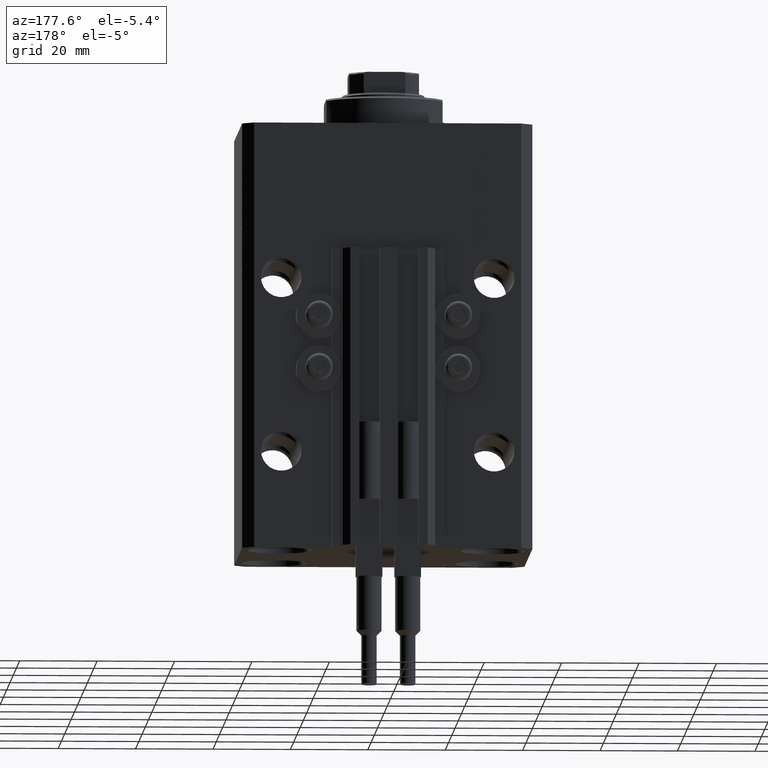
[diagram: clean part render]
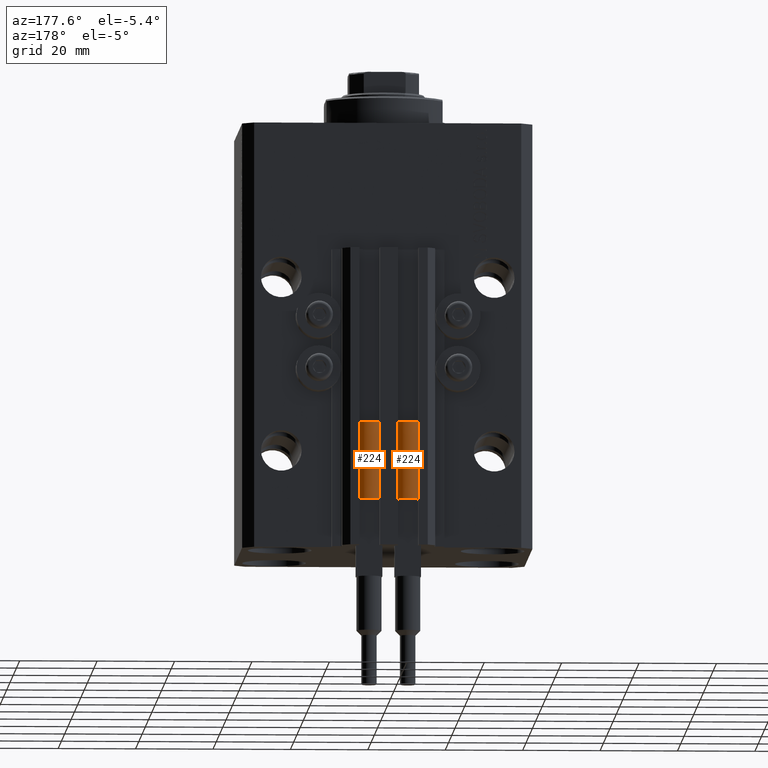
[diagram: same view with one multi-face feature highlighted, each face labeled with its STEP entity id]
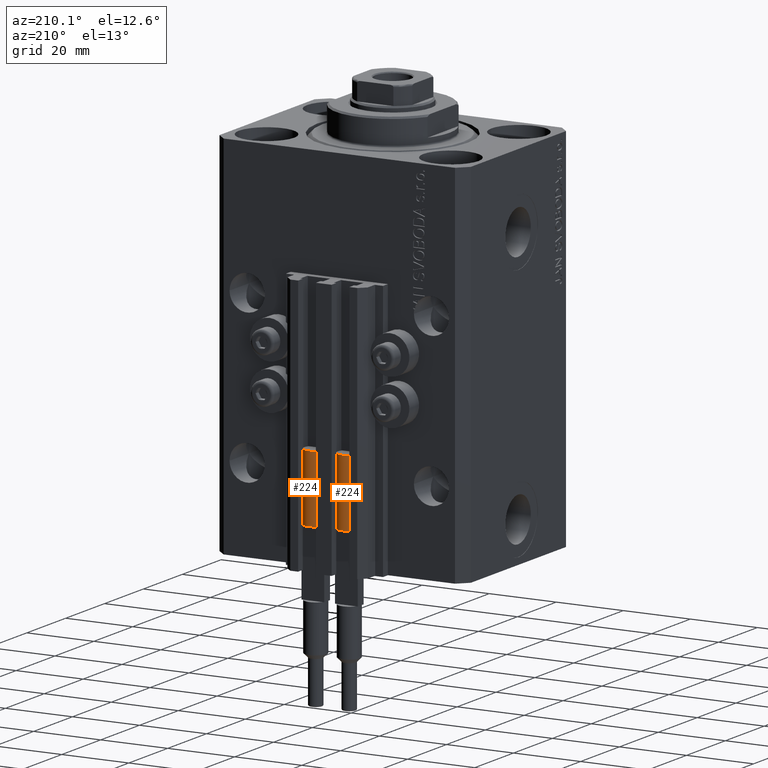
[diagram: same view with one multi-face feature highlighted, each face labeled with its STEP entity id]
A machine part, auxiliary view. The highlighted faces form ONE feature: a constant-radius fillet chain: 2 tangent blend faces with common blend radius 3.4 mm. The faces share edges in the B-rep.
A second angle (auxiliary view) of the same feature is appended — it is thin or edge-on in the first view.
Their STEP definitions:
[1] entity #224 (Cylinder):
#91 = ORIENTED_EDGE ( 'NONE', *, *, #35414, .T. ) ;
#224 = ADVANCED_FACE ( 'NONE', ( #7467 ), #22318, .T. ) ;
#1287 = CARTESIAN_POINT ( 'NONE',  ( 0.000000000000000000, 0.000000000000000000, 20.00000000000000000 ) ) ;
#2451 = ORIENTED_EDGE ( 'NONE', *, *, #24583, .F. ) ;
#3814 = DIRECTION ( 'NONE',  ( -0.000000000000000000, -0.000000000000000000, -1.000000000000000000 ) ) ;
#4032 = VECTOR ( 'NONE', #28088, 1000.000000000000000 ) ;
#4962 = DIRECTION ( 'NONE',  ( 1.000000000000000000, 0.000000000000000000, 0.000000000000000000 ) ) ;
#5636 = VERTEX_POINT ( 'NONE', #31916 ) ;
#6037 = CIRCLE ( 'NONE', #10044, 3.400000000000000355 ) ;
#7467 = FACE_OUTER_BOUND ( 'NONE', #46467, .T. ) ;
#8025 = CARTESIAN_POINT ( 'NONE',  ( -3.399999999999999467, -4.915049848600952119E-16, 20.00000000000000000 ) ) ;
#8550 = DIRECTION ( 'NONE',  ( 1.000000000000000000, 0.000000000000000000, 0.000000000000000000 ) ) ;
#9146 = EDGE_CURVE ( 'NONE', #39983, #23685, #6037, .T. ) ;
#10044 = AXIS2_PLACEMENT_3D ( 'NONE', #38377, #41558, #44984 ) ;
#12270 = DIRECTION ( 'NONE',  ( 0.000000000000000000, 0.000000000000000000, 1.000000000000000000 ) ) ;
#13056 = CARTESIAN_POINT ( 'NONE',  ( 3.400000000000000355, 4.163799117101001052E-16, 0.000000000000000000 ) ) ;
#14666 = ORIENTED_EDGE ( 'NONE', *, *, #9146, .T. ) ;
#15343 = VECTOR ( 'NONE', #25801, 1000.000000000000000 ) ;
#16235 = DIRECTION ( 'NONE',  ( 0.000000000000000000, 0.000000000000000000, 1.000000000000000000 ) ) ;
#16843 = EDGE_CURVE ( 'NONE', #5636, #29726, #43296, .T. ) ;
#16976 = ORIENTED_EDGE ( 'NONE', *, *, #16843, .F. ) ;
#17660 = EDGE_CURVE ( 'NONE', #47677, #23685, #32390, .T. ) ;
#18675 = DIRECTION ( 'NONE',  ( -1.000000000000000000, 0.000000000000000000, 0.000000000000000000 ) ) ;
#20089 = AXIS2_PLACEMENT_3D ( 'NONE', #30930, #41902, #8550 ) ;
#21447 = ORIENTED_EDGE ( 'NONE', *, *, #39815, .F. ) ;
#22318 = CYLINDRICAL_SURFACE ( 'NONE', #40811, 3.400000000000000355 ) ;
#23530 = CARTESIAN_POINT ( 'NONE',  ( 0.000000000000000000, 0.000000000000000000, 20.00000000000000000 ) ) ;
#23685 = VERTEX_POINT ( 'NONE', #27025 ) ;
#24583 = EDGE_CURVE ( 'NONE', #27476, #5636, #28634, .T. ) ;
#25801 = DIRECTION ( 'NONE',  ( -0.000000000000000000, -0.000000000000000000, -1.000000000000000000 ) ) ;
#27025 = CARTESIAN_POINT ( 'NONE',  ( -3.400000000000000355, 0.000000000000000000, 0.000000000000000000 ) ) ;
#27177 = DIRECTION ( 'NONE',  ( 1.000000000000000000, 0.000000000000000000, 0.000000000000000000 ) ) ;
#27476 = VERTEX_POINT ( 'NONE', #33121 ) ;
#28088 = DIRECTION ( 'NONE',  ( -0.000000000000000000, -0.000000000000000000, -1.000000000000000000 ) ) ;
#28364 = AXIS2_PLACEMENT_3D ( 'NONE', #23530, #16235, #27177 ) ;
#28565 = CARTESIAN_POINT ( 'NONE',  ( 3.400000000000000355, 4.163799117101001052E-16, 20.00000000000000000 ) ) ;
#28634 = CIRCLE ( 'NONE', #20089, 3.400000000000000355 ) ;
#29726 = VERTEX_POINT ( 'NONE', #46036 ) ;
#30930 = CARTESIAN_POINT ( 'NONE',  ( 0.000000000000000000, 0.000000000000000000, 20.00000000000000000 ) ) ;
#31916 = CARTESIAN_POINT ( 'NONE',  ( 3.051229260478471428, 1.500000000000000000, 20.00000000000000000 ) ) ;
#32390 = LINE ( 'NONE', #37006, #15343 ) ;
#33121 = CARTESIAN_POINT ( 'NONE',  ( 3.400000000000000355, 0.000000000000000000, 20.00000000000000000 ) ) ;
#35414 = EDGE_CURVE ( 'NONE', #27476, #39983, #47321, .T. ) ;
#36149 = CIRCLE ( 'NONE', #28364, 3.400000000000000355 ) ;
#37006 = CARTESIAN_POINT ( 'NONE',  ( -3.400000000000000355, 0.000000000000000000, 20.00000000000000000 ) ) ;
#37165 = CARTESIAN_POINT ( 'NONE',  ( 0.000000000000000000, 0.000000000000000000, 20.00000000000000000 ) ) ;
#37464 = ORIENTED_EDGE ( 'NONE', *, *, #17660, .F. ) ;
#38377 = CARTESIAN_POINT ( 'NONE',  ( 0.000000000000000000, 0.000000000000000000, 0.000000000000000000 ) ) ;
#38611 = AXIS2_PLACEMENT_3D ( 'NONE', #1287, #12270, #4962 ) ;
#39815 = EDGE_CURVE ( 'NONE', #29726, #47677, #36149, .T. ) ;
#39983 = VERTEX_POINT ( 'NONE', #13056 ) ;
#40811 = AXIS2_PLACEMENT_3D ( 'NONE', #37165, #3814, #18675 ) ;
#41558 = DIRECTION ( 'NONE',  ( 0.000000000000000000, 0.000000000000000000, 1.000000000000000000 ) ) ;
#41902 = DIRECTION ( 'NONE',  ( 0.000000000000000000, 0.000000000000000000, 1.000000000000000000 ) ) ;
#43296 = CIRCLE ( 'NONE', #38611, 3.400000000000000355 ) ;
#44984 = DIRECTION ( 'NONE',  ( 1.000000000000000000, 0.000000000000000000, 0.000000000000000000 ) ) ;
#46036 = CARTESIAN_POINT ( 'NONE',  ( -3.051229260478471428, 1.500000000000000000, 20.00000000000000000 ) ) ;
#46467 = EDGE_LOOP ( 'NONE', ( #2451, #91, #14666, #37464, #21447, #16976 ) ) ;
#47321 = LINE ( 'NONE', #28565, #4032 ) ;
#47677 = VERTEX_POINT ( 'NONE', #8025 ) ;
[2] entity #224 (Cylinder):
#91 = ORIENTED_EDGE ( 'NONE', *, *, #35414, .T. ) ;
#224 = ADVANCED_FACE ( 'NONE', ( #7467 ), #22318, .T. ) ;
#1287 = CARTESIAN_POINT ( 'NONE',  ( 0.000000000000000000, 0.000000000000000000, 20.00000000000000000 ) ) ;
#2451 = ORIENTED_EDGE ( 'NONE', *, *, #24583, .F. ) ;
#3814 = DIRECTION ( 'NONE',  ( -0.000000000000000000, -0.000000000000000000, -1.000000000000000000 ) ) ;
#4032 = VECTOR ( 'NONE', #28088, 1000.000000000000000 ) ;
#4962 = DIRECTION ( 'NONE',  ( 1.000000000000000000, 0.000000000000000000, 0.000000000000000000 ) ) ;
#5636 = VERTEX_POINT ( 'NONE', #31916 ) ;
#6037 = CIRCLE ( 'NONE', #10044, 3.400000000000000355 ) ;
#7467 = FACE_OUTER_BOUND ( 'NONE', #46467, .T. ) ;
#8025 = CARTESIAN_POINT ( 'NONE',  ( -3.399999999999999467, -4.915049848600952119E-16, 20.00000000000000000 ) ) ;
#8550 = DIRECTION ( 'NONE',  ( 1.000000000000000000, 0.000000000000000000, 0.000000000000000000 ) ) ;
#9146 = EDGE_CURVE ( 'NONE', #39983, #23685, #6037, .T. ) ;
#10044 = AXIS2_PLACEMENT_3D ( 'NONE', #38377, #41558, #44984 ) ;
#12270 = DIRECTION ( 'NONE',  ( 0.000000000000000000, 0.000000000000000000, 1.000000000000000000 ) ) ;
#13056 = CARTESIAN_POINT ( 'NONE',  ( 3.400000000000000355, 4.163799117101001052E-16, 0.000000000000000000 ) ) ;
#14666 = ORIENTED_EDGE ( 'NONE', *, *, #9146, .T. ) ;
#15343 = VECTOR ( 'NONE', #25801, 1000.000000000000000 ) ;
#16235 = DIRECTION ( 'NONE',  ( 0.000000000000000000, 0.000000000000000000, 1.000000000000000000 ) ) ;
#16843 = EDGE_CURVE ( 'NONE', #5636, #29726, #43296, .T. ) ;
#16976 = ORIENTED_EDGE ( 'NONE', *, *, #16843, .F. ) ;
#17660 = EDGE_CURVE ( 'NONE', #47677, #23685, #32390, .T. ) ;
#18675 = DIRECTION ( 'NONE',  ( -1.000000000000000000, 0.000000000000000000, 0.000000000000000000 ) ) ;
#20089 = AXIS2_PLACEMENT_3D ( 'NONE', #30930, #41902, #8550 ) ;
#21447 = ORIENTED_EDGE ( 'NONE', *, *, #39815, .F. ) ;
#22318 = CYLINDRICAL_SURFACE ( 'NONE', #40811, 3.400000000000000355 ) ;
#23530 = CARTESIAN_POINT ( 'NONE',  ( 0.000000000000000000, 0.000000000000000000, 20.00000000000000000 ) ) ;
#23685 = VERTEX_POINT ( 'NONE', #27025 ) ;
#24583 = EDGE_CURVE ( 'NONE', #27476, #5636, #28634, .T. ) ;
#25801 = DIRECTION ( 'NONE',  ( -0.000000000000000000, -0.000000000000000000, -1.000000000000000000 ) ) ;
#27025 = CARTESIAN_POINT ( 'NONE',  ( -3.400000000000000355, 0.000000000000000000, 0.000000000000000000 ) ) ;
#27177 = DIRECTION ( 'NONE',  ( 1.000000000000000000, 0.000000000000000000, 0.000000000000000000 ) ) ;
#27476 = VERTEX_POINT ( 'NONE', #33121 ) ;
#28088 = DIRECTION ( 'NONE',  ( -0.000000000000000000, -0.000000000000000000, -1.000000000000000000 ) ) ;
#28364 = AXIS2_PLACEMENT_3D ( 'NONE', #23530, #16235, #27177 ) ;
#28565 = CARTESIAN_POINT ( 'NONE',  ( 3.400000000000000355, 4.163799117101001052E-16, 20.00000000000000000 ) ) ;
#28634 = CIRCLE ( 'NONE', #20089, 3.400000000000000355 ) ;
#29726 = VERTEX_POINT ( 'NONE', #46036 ) ;
#30930 = CARTESIAN_POINT ( 'NONE',  ( 0.000000000000000000, 0.000000000000000000, 20.00000000000000000 ) ) ;
#31916 = CARTESIAN_POINT ( 'NONE',  ( 3.051229260478471428, 1.500000000000000000, 20.00000000000000000 ) ) ;
#32390 = LINE ( 'NONE', #37006, #15343 ) ;
#33121 = CARTESIAN_POINT ( 'NONE',  ( 3.400000000000000355, 0.000000000000000000, 20.00000000000000000 ) ) ;
#35414 = EDGE_CURVE ( 'NONE', #27476, #39983, #47321, .T. ) ;
#36149 = CIRCLE ( 'NONE', #28364, 3.400000000000000355 ) ;
#37006 = CARTESIAN_POINT ( 'NONE',  ( -3.400000000000000355, 0.000000000000000000, 20.00000000000000000 ) ) ;
#37165 = CARTESIAN_POINT ( 'NONE',  ( 0.000000000000000000, 0.000000000000000000, 20.00000000000000000 ) ) ;
#37464 = ORIENTED_EDGE ( 'NONE', *, *, #17660, .F. ) ;
#38377 = CARTESIAN_POINT ( 'NONE',  ( 0.000000000000000000, 0.000000000000000000, 0.000000000000000000 ) ) ;
#38611 = AXIS2_PLACEMENT_3D ( 'NONE', #1287, #12270, #4962 ) ;
#39815 = EDGE_CURVE ( 'NONE', #29726, #47677, #36149, .T. ) ;
#39983 = VERTEX_POINT ( 'NONE', #13056 ) ;
#40811 = AXIS2_PLACEMENT_3D ( 'NONE', #37165, #3814, #18675 ) ;
#41558 = DIRECTION ( 'NONE',  ( 0.000000000000000000, 0.000000000000000000, 1.000000000000000000 ) ) ;
#41902 = DIRECTION ( 'NONE',  ( 0.000000000000000000, 0.000000000000000000, 1.000000000000000000 ) ) ;
#43296 = CIRCLE ( 'NONE', #38611, 3.400000000000000355 ) ;
#44984 = DIRECTION ( 'NONE',  ( 1.000000000000000000, 0.000000000000000000, 0.000000000000000000 ) ) ;
#46036 = CARTESIAN_POINT ( 'NONE',  ( -3.051229260478471428, 1.500000000000000000, 20.00000000000000000 ) ) ;
#46467 = EDGE_LOOP ( 'NONE', ( #2451, #91, #14666, #37464, #21447, #16976 ) ) ;
#47321 = LINE ( 'NONE', #28565, #4032 ) ;
#47677 = VERTEX_POINT ( 'NONE', #8025 ) ;